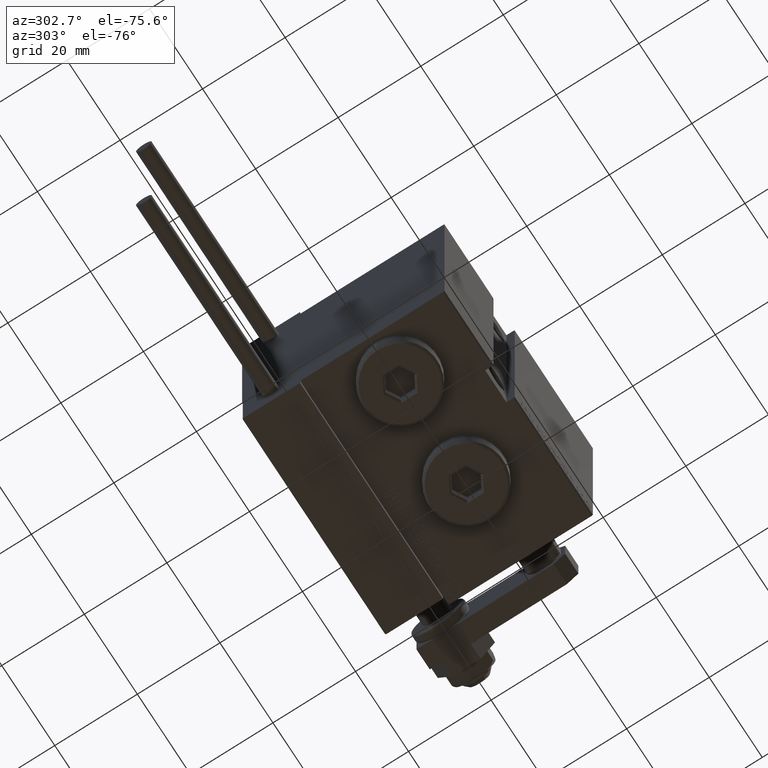
[diagram: clean part render]
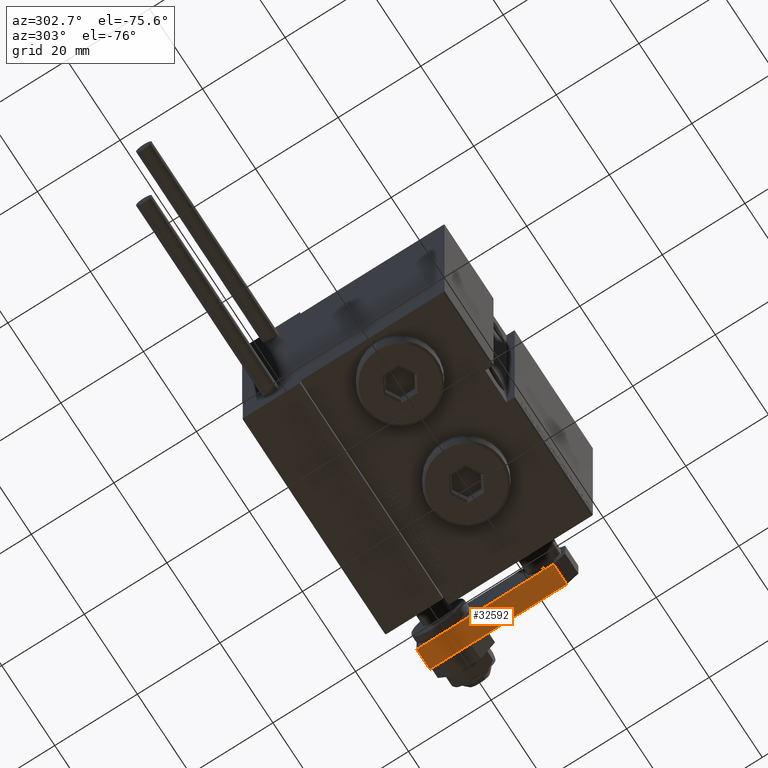
[diagram: same view with one face highlighted and labeled with its STEP entity id]
A machine part, auxiliary view. The second image highlights one B-rep face of the part: STEP entity #32592.
In plain terms, the highlighted planar face has unit normal (0, 0, 1).
Its self-contained STEP definition (entity closure, byte-faithful):
#597 = ORIENTED_EDGE ( 'NONE', *, *, #23969, .T. ) ;
#2463 = DIRECTION ( 'NONE',  ( -3.614007241618348278E-16, -1.000000000000000000, 0.000000000000000000 ) ) ;
#2731 = VERTEX_POINT ( 'NONE', #4664 ) ;
#3343 = CARTESIAN_POINT ( 'NONE',  ( 6.000000000000008882, 36.00000000000000000, 5.000000000000000000 ) ) ;
#3610 = DIRECTION ( 'NONE',  ( -0.000000000000000000, -0.000000000000000000, -1.000000000000000000 ) ) ;
#4556 = AXIS2_PLACEMENT_3D ( 'NONE', #34537, #26015, #2463 ) ;
#4664 = CARTESIAN_POINT ( 'NONE',  ( 5.999999999999996447, 2.799999999999997158, 0.000000000000000000 ) ) ;
#4744 = CARTESIAN_POINT ( 'NONE',  ( 6.000000000000008882, 36.00000000000000000, 5.000000000000000000 ) ) ;
#5239 = ORIENTED_EDGE ( 'NONE', *, *, #25626, .F. ) ;
#8555 = CARTESIAN_POINT ( 'NONE',  ( 5.999999999999995559, 0.000000000000000000, 0.000000000000000000 ) ) ;
#10688 = EDGE_CURVE ( 'NONE', #46886, #2731, #12423, .T. ) ;
#11119 = ORIENTED_EDGE ( 'NONE', *, *, #27043, .F. ) ;
#12423 = LINE ( 'NONE', #36235, #32845 ) ;
#18752 = PLANE ( 'NONE',  #4556 ) ;
#19121 = LINE ( 'NONE', #3343, #41529 ) ;
#20370 = CARTESIAN_POINT ( 'NONE',  ( 6.000000000000008882, 36.00000000000000000, 0.000000000000000000 ) ) ;
#20570 = DIRECTION ( 'NONE',  ( 3.614007241618348278E-16, 1.000000000000000000, 0.000000000000000000 ) ) ;
#21653 = VECTOR ( 'NONE', #20570, 1000.000000000000000 ) ;
#23969 = EDGE_CURVE ( 'NONE', #2731, #24182, #25324, .T. ) ;
#24182 = VERTEX_POINT ( 'NONE', #20370 ) ;
#25324 = LINE ( 'NONE', #8555, #41420 ) ;
#25626 = EDGE_CURVE ( 'NONE', #46886, #29641, #48246, .T. ) ;
#26015 = DIRECTION ( 'NONE',  ( -1.000000000000000000, 3.614007241618348278E-16, 0.000000000000000000 ) ) ;
#27043 = EDGE_CURVE ( 'NONE', #29641, #24182, #19121, .T. ) ;
#29641 = VERTEX_POINT ( 'NONE', #4744 ) ;
#32592 = ADVANCED_FACE ( 'NONE', ( #50042 ), #18752, .F. ) ;
#32845 = VECTOR ( 'NONE', #48112, 1000.000000000000000 ) ;
#34537 = CARTESIAN_POINT ( 'NONE',  ( 5.999999999999995559, 0.000000000000000000, 5.000000000000000000 ) ) ;
#36109 = CARTESIAN_POINT ( 'NONE',  ( 5.999999999999995559, 0.000000000000000000, 5.000000000000000000 ) ) ;
#36235 = CARTESIAN_POINT ( 'NONE',  ( 5.999999999999996447, 2.799999999999997158, 5.000000000000000000 ) ) ;
#36974 = DIRECTION ( 'NONE',  ( 3.614007241618348278E-16, 1.000000000000000000, 0.000000000000000000 ) ) ;
#40016 = CARTESIAN_POINT ( 'NONE',  ( 5.999999999999996447, 2.799999999999997158, 5.000000000000000000 ) ) ;
#41420 = VECTOR ( 'NONE', #36974, 1000.000000000000000 ) ;
#41529 = VECTOR ( 'NONE', #3610, 1000.000000000000000 ) ;
#44197 = EDGE_LOOP ( 'NONE', ( #5239, #45791, #597, #11119 ) ) ;
#45791 = ORIENTED_EDGE ( 'NONE', *, *, #10688, .T. ) ;
#46886 = VERTEX_POINT ( 'NONE', #40016 ) ;
#48112 = DIRECTION ( 'NONE',  ( 0.000000000000000000, 0.000000000000000000, -1.000000000000000000 ) ) ;
#48246 = LINE ( 'NONE', #36109, #21653 ) ;
#50042 = FACE_OUTER_BOUND ( 'NONE', #44197, .T. ) ;